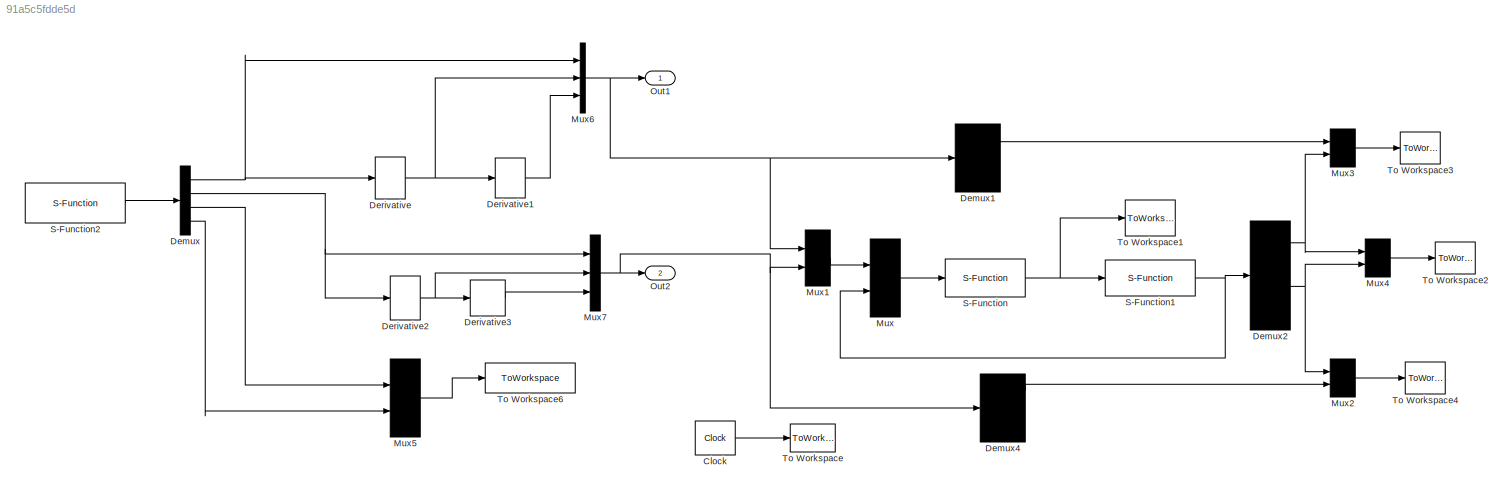
MODEL slx_91a5c5fdde5d
KIND model
CONFIG AbsTol = auto
CONFIG EnableMultiTasking = on
CONFIG FixedStep = 0.001
CONFIG MaxStep = auto
CONFIG MinStep = auto
CONFIG RelTol = 1e-3
CONFIG SampleTimeConstraint = Unconstrained
CONFIG Solver = ode45
CONFIG SolverName = ode45
CONFIG StartTime = 0.0
CONFIG StopTime = 2
BLOCK [Clock] Clock
BLOCK [Demux] Demux
  DisplayOption = none
  Ports = [1, 4]
BLOCK [Demux] Demux1
  DisplayOption = none
  Outputs = 3
  Ports = [1, 3]
BLOCK [Demux] Demux2
  DisplayOption = none
  Ports = [1, 4]
BLOCK [Demux] Demux4
  DisplayOption = none
  Outputs = 3
  Ports = [1, 3]
BLOCK [Derivative] Derivative
BLOCK [Derivative] Derivative1
BLOCK [Derivative] Derivative2
BLOCK [Derivative] Derivative3
BLOCK [Mux] Mux
  Inputs = 2
  Ports = [2, 1]
BLOCK [Mux] Mux1
  Inputs = 2
  Ports = [2, 1]
BLOCK [Mux] Mux2
  Inputs = 2
  Ports = [2, 1]
BLOCK [Mux] Mux3
  Inputs = 2
  Ports = [2, 1]
BLOCK [Mux] Mux4
  Inputs = 2
  Ports = [2, 1]
BLOCK [Mux] Mux5
  Inputs = 2
  Ports = [2, 1]
BLOCK [Mux] Mux6
  DisplayOption = bar
  Inputs = 3
  Ports = [3, 1]
BLOCK [Mux] Mux7
  DisplayOption = bar
  Inputs = 3
  Ports = [3, 1]
BLOCK [Outport] Out1
BLOCK [Outport] Out2
  Port = 2
BLOCK [S-Function] S-Function
  EnableBusSupport = off
  FunctionName = my_ctrl
  Ports = [1, 1]
  SFcnIsStateOwnerBlock = off
  SFunctionDeploymentMode = off
BLOCK [S-Function] S-Function1
  EnableBusSupport = off
  FunctionName = my_plant
  Parameters = 0.1,0.1
  Ports = [1, 1]
  SFcnIsStateOwnerBlock = off
  SFunctionDeploymentMode = off
BLOCK [S-Function] S-Function2
  EnableBusSupport = off
  FunctionName = my_input
  Ports = [0, 1]
  SFcnIsStateOwnerBlock = off
  SFunctionDeploymentMode = off
BLOCK [ToWorkspace] To Workspace
  MaxDataPoints = inf
  Ports = [1]
  SampleTime = -1
  VariableName = t
BLOCK [ToWorkspace] To Workspace1
  MaxDataPoints = inf
  Ports = [1]
  SampleTime = -1
  VariableName = tol
BLOCK [ToWorkspace] To Workspace2
  MaxDataPoints = inf
  Ports = [1]
  SampleTime = -1
  VariableName = q
BLOCK [ToWorkspace] To Workspace3
  MaxDataPoints = inf
  Ports = [1]
  SampleTime = -1
  VariableName = q1
BLOCK [ToWorkspace] To Workspace4
  MaxDataPoints = inf
  Ports = [1]
  SampleTime = -1
  VariableName = q2
BLOCK [ToWorkspace] To Workspace6
  FixptAsFi = on
  MaxDataPoints = inf
  Ports = [1]
  SampleTime = -1
  VariableName = y0
LINE Clock:1 -> To Workspace:1
LINE Demux1:1 -> Mux3:1
NET Demux2:1 -> Mux3:2, Mux4:1
NET Demux2:3 -> Mux2:1, Mux4:2
LINE Demux4:1 -> Mux2:2
NET Demux:1 -> Derivative:1, Mux6:1
NET Demux:2 -> Derivative2:1, Mux7:1
LINE Demux:3 -> Mux5:1
LINE Demux:4 -> Mux5:2
LINE Derivative1:1 -> Mux6:3
NET Derivative2:1 -> Derivative3:1, Mux7:2
LINE Derivative3:1 -> Mux7:3
NET Derivative:1 -> Derivative1:1, Mux6:2
LINE Mux1:1 -> Mux:1
LINE Mux2:1 -> To Workspace4:1
LINE Mux3:1 -> To Workspace3:1
LINE Mux4:1 -> To Workspace2:1
LINE Mux5:1 -> To Workspace6:1
NET Mux6:1 -> Demux1:1, Mux1:1, Out1:1
NET Mux7:1 -> Demux4:1, Mux1:2, Out2:1
LINE Mux:1 -> S-Function:1
NET S-Function1:1 -> Demux2:1, Mux:2
LINE S-Function2:1 -> Demux:1
NET S-Function:1 -> S-Function1:1, To Workspace1:1
note: NET lines group one-source signal fan-out (src -> all destinations, sorted); 1:1 wires keep LINE
